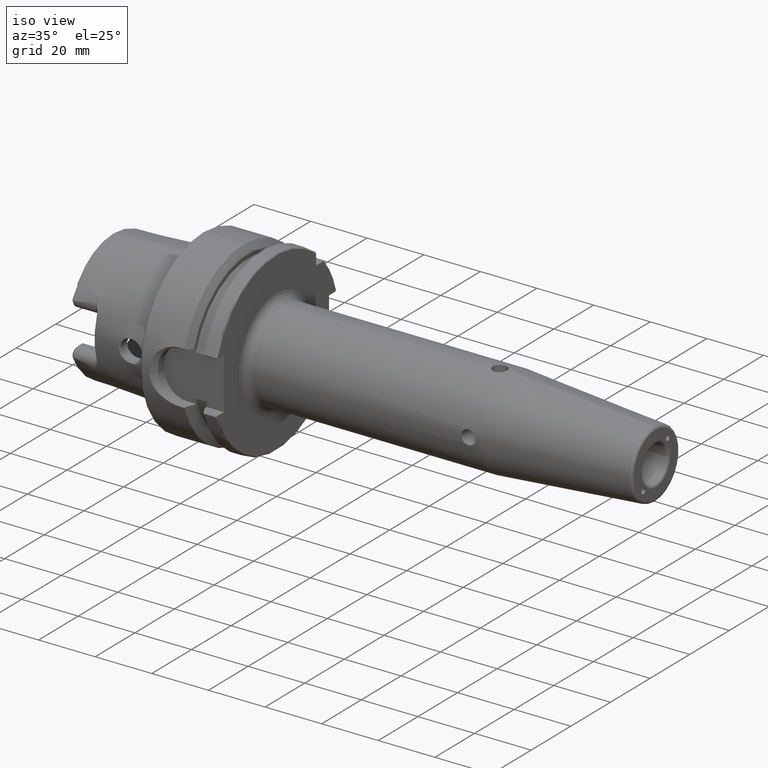
[diagram: clean part render]
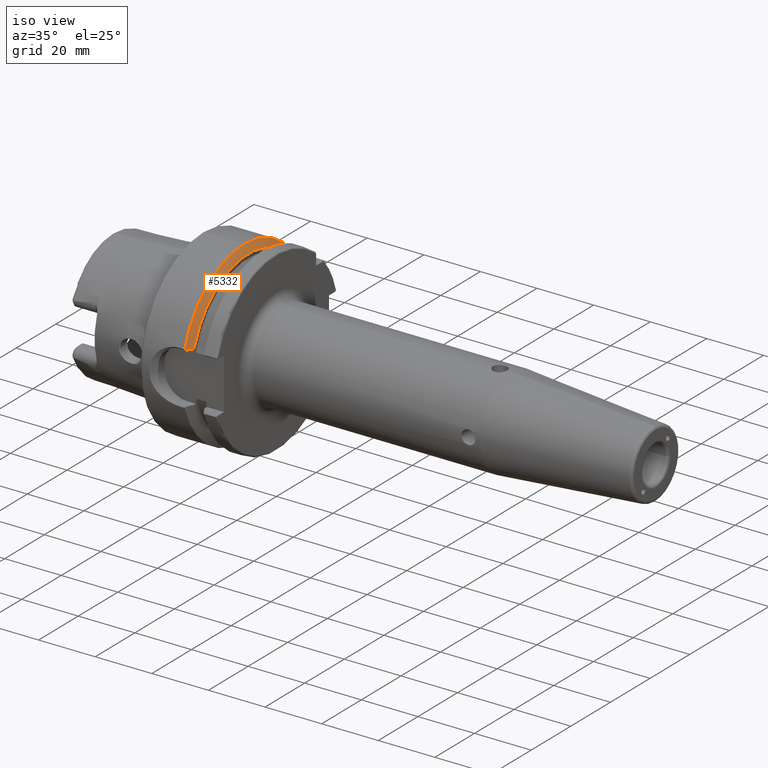
[diagram: same view with one face highlighted and labeled with its STEP entity id]
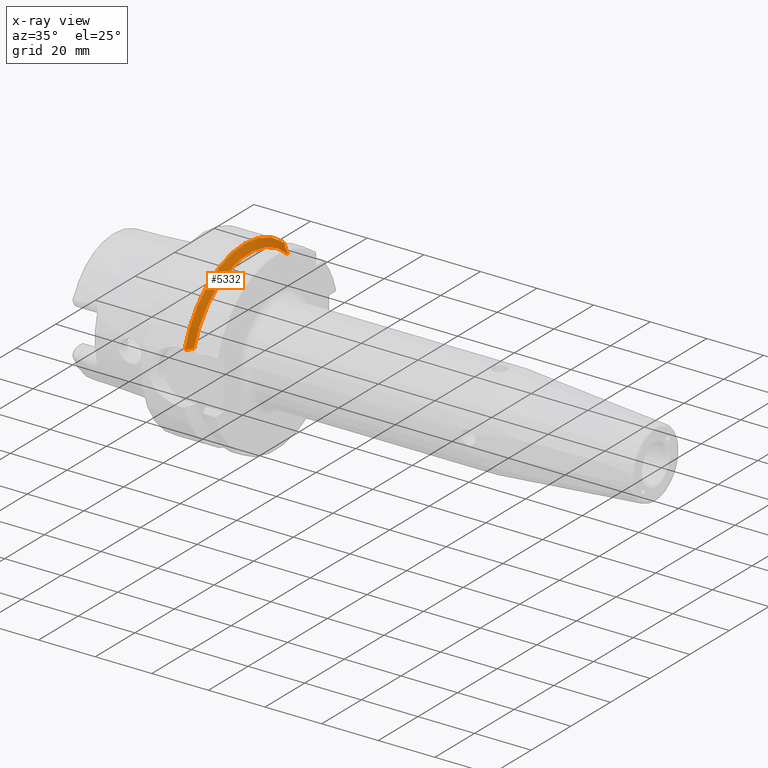
[diagram: x-ray of the same camera — body ghosted, the highlighted face saturated]
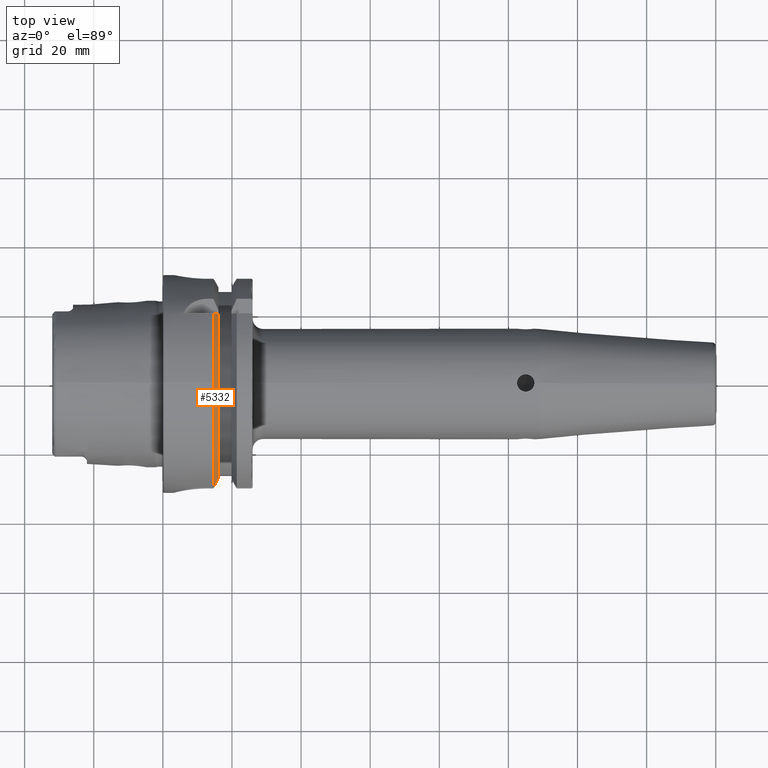
[diagram: same view with one face highlighted and labeled with its STEP entity id]
A machine part, iso view. The second image highlights one B-rep face of the part: STEP entity #5332.
The next image is the same camera in x-ray: the body ghosted, the highlighted face saturated — about 0% of this face is hidden behind the body in this view.
A second angle (top view) of the same face is appended — the face is thin or edge-on in the first view.
In plain terms, the highlighted conical surface has half-angle 60 deg.
Its self-contained STEP definition (entity closure, byte-faithful):
#927=CARTESIAN_POINT('',(1.462250090457E1,0.E0,0.E0));
#928=DIRECTION('',(1.E0,0.E0,0.E0));
#929=DIRECTION('',(0.E0,0.E0,1.E0));
#930=AXIS2_PLACEMENT_3D('',#927,#928,#929);
#1111=CARTESIAN_POINT('',(1.462250090457E1,0.E0,0.E0));
#1112=DIRECTION('',(1.E0,0.E0,0.E0));
#1113=DIRECTION('',(0.E0,6.349206349206E-1,7.725773665802E-1));
#1114=AXIS2_PLACEMENT_3D('',#1111,#1112,#1113);
#2022=CARTESIAN_POINT('',(1.462250090457E1,-3.007314630073E1,9.373146300730E0));
#2023=CARTESIAN_POINT('',(1.466777137486E1,-3.001053107025E1,9.310531070255E0));
#2024=CARTESIAN_POINT('',(1.475791251295E1,-2.988572482499E1,9.185724824995E0));
#2025=CARTESIAN_POINT('',(1.484725375035E1,-2.976176690400E1,9.061766903997E0));
#2026=CARTESIAN_POINT('',(1.489172432548E1,-2.97E1,9.E0));
#2028=CARTESIAN_POINT('',(1.6125E1,2.E1,2.085835597842E1));
#2029=CARTESIAN_POINT('',(1.597263395735E1,2.E1,2.122397638976E1));
#2030=CARTESIAN_POINT('',(1.565826960383E1,2.E1,2.196910957739E1));
#2031=CARTESIAN_POINT('',(1.515798179355E1,2.E1,2.312741859196E1));
#2032=CARTESIAN_POINT('',(1.480432315424E1,2.E1,2.392855749541E1));
#2033=CARTESIAN_POINT('',(1.462250090457E1,2.E1,2.433618704728E1));
#2035=CARTESIAN_POINT('',(1.6125E1,0.E0,0.E0));
#2036=DIRECTION('',(1.E0,0.E0,0.E0));
#2037=DIRECTION('',(0.E0,6.920991104059E-1,7.218024808598E-1));
#2038=AXIS2_PLACEMENT_3D('',#2035,#2036,#2037);
#2040=CARTESIAN_POINT('',(1.6125E1,-2.746035349595E1,9.E0));
#2041=CARTESIAN_POINT('',(1.599184268889E1,-2.770305988738E1,9.E0));
#2042=CARTESIAN_POINT('',(1.572294078043E1,-2.819256428175E1,9.E0));
#2043=CARTESIAN_POINT('',(1.531187997018E1,-2.893903747046E1,9.E0));
#2044=CARTESIAN_POINT('',(1.503263735229E1,-2.944497148241E1,9.E0));
#2045=CARTESIAN_POINT('',(1.489172432548E1,-2.97E1,9.E0));
#2799=CARTESIAN_POINT('',(1.6125E1,-2.746035349595E1,9.E0));
#2800=VERTEX_POINT('',#2799);
#2822=CARTESIAN_POINT('',(1.462250090457E1,2.E1,2.433618704728E1));
#2824=VERTEX_POINT('',#2822);
#2829=VERTEX_POINT('',#2028);
#2841=CARTESIAN_POINT('',(1.462250090457E1,0.E0,3.15E1));
#2842=VERTEX_POINT('',#2841);
#3025=CARTESIAN_POINT('',(1.462250090457E1,-3.007314630073E1,9.373146300730E0));
#3026=VERTEX_POINT('',#3025);
#3028=VERTEX_POINT('',#2026);
#5315=CARTESIAN_POINT('',(1.537375045228E1,0.E0,0.E0));
#5316=DIRECTION('',(-1.E0,0.E0,0.E0));
#5317=DIRECTION('',(0.E0,0.E0,-1.E0));
#5318=AXIS2_PLACEMENT_3D('',#5315,#5316,#5317);
#5319=CONICAL_SURFACE('',#5318,3.019879765E1,5.999999931725E1);
#5321=ORIENTED_EDGE('',*,*,#5320,.F.);
#5322=ORIENTED_EDGE('',*,*,#4127,.F.);
#5323=ORIENTED_EDGE('',*,*,#4207,.F.);
#5325=ORIENTED_EDGE('',*,*,#5324,.F.);
#5327=ORIENTED_EDGE('',*,*,#5326,.T.);
#5329=ORIENTED_EDGE('',*,*,#5328,.T.);
#5330=EDGE_LOOP('',(#5321,#5322,#5323,#5325,#5327,#5329));
#5331=FACE_OUTER_BOUND('',#5330,.F.);
#5332=ADVANCED_FACE('',(#5331),#5319,.T.);
#931=CIRCLE('',#930,3.15E1);
#1115=CIRCLE('',#1114,3.15E1);
#2027=B_SPLINE_CURVE_WITH_KNOTS('',3,(#2022,#2023,#2024,#2025,#2026),
.UNSPECIFIED.,.F.,.F.,(4,1,4),(0.E0,5.E-1,1.E0),.UNSPECIFIED.);
#2034=B_SPLINE_CURVE_WITH_KNOTS('',3,(#2028,#2029,#2030,#2031,#2032,#2033),
.UNSPECIFIED.,.F.,.F.,(4,1,1,4),(0.E0,3.333333333333E-1,6.666666666667E-1,1.E0),
.UNSPECIFIED.);
#2039=CIRCLE('',#2038,2.88975953E1);
#2046=B_SPLINE_CURVE_WITH_KNOTS('',3,(#2040,#2041,#2042,#2043,#2044,#2045),
.UNSPECIFIED.,.F.,.F.,(4,1,1,4),(0.E0,3.333333333333E-1,6.666666666667E-1,1.E0),
.UNSPECIFIED.);
#4127=EDGE_CURVE('',#2842,#3026,#931,.T.);
#4207=EDGE_CURVE('',#2824,#2842,#1115,.T.);
#5320=EDGE_CURVE('',#3026,#3028,#2027,.T.);
#5324=EDGE_CURVE('',#2829,#2824,#2034,.T.);
#5326=EDGE_CURVE('',#2829,#2800,#2039,.T.);
#5328=EDGE_CURVE('',#2800,#3028,#2046,.T.);